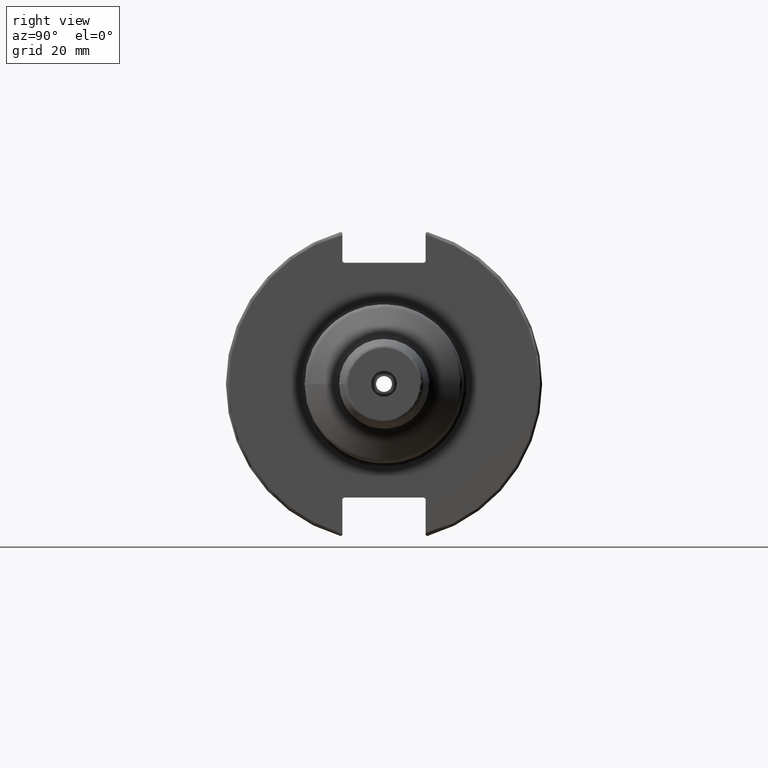
[diagram: clean part render]
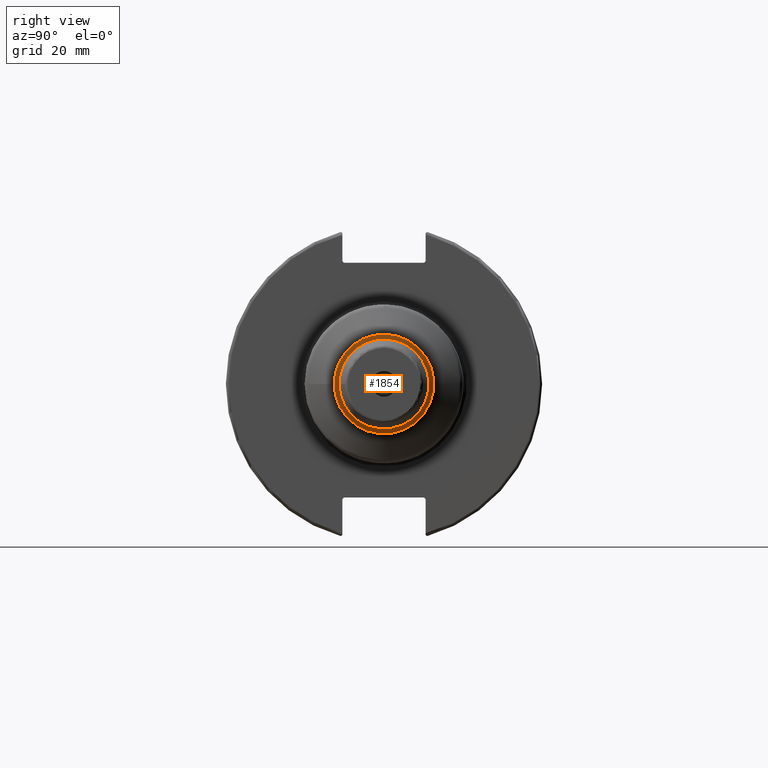
[diagram: same view with one face highlighted and labeled with its STEP entity id]
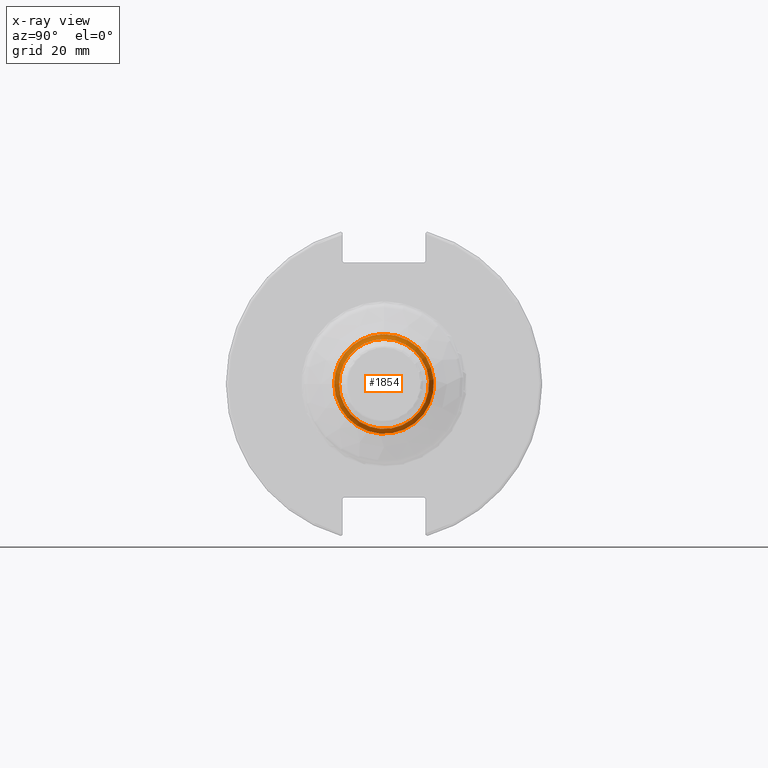
[diagram: x-ray of the same camera — body ghosted, the highlighted face saturated]
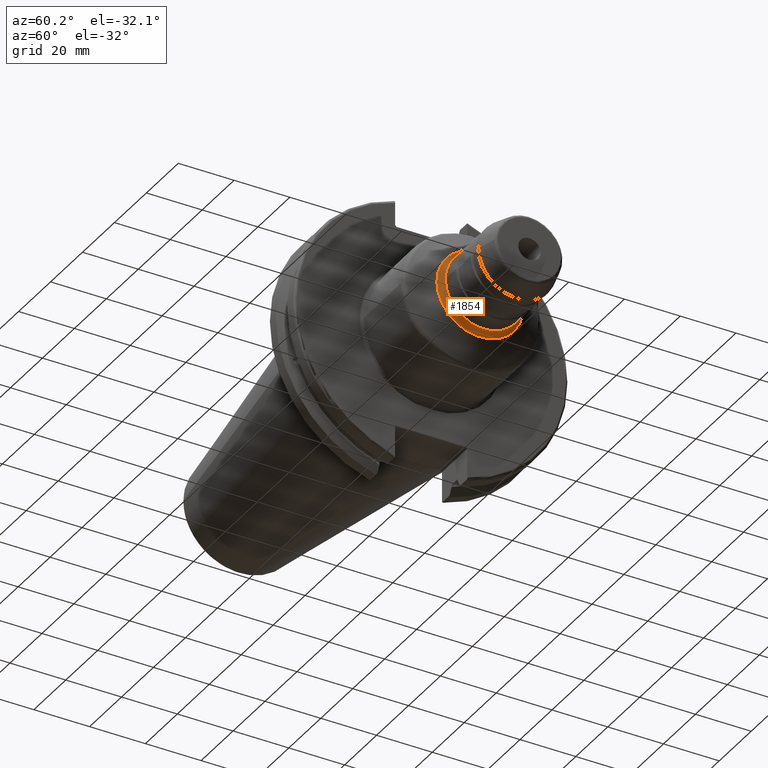
[diagram: same view with one face highlighted and labeled with its STEP entity id]
A machine part, right view. The second image highlights one B-rep face of the part: STEP entity #1854.
The next image is the same camera in x-ray: the body ghosted, the highlighted face saturated — about 0% of this face is hidden behind the body in this view.
A second angle (auxiliary view) of the same face is appended — the face is thin or edge-on in the first view.
In plain terms, the highlighted toroidal blend (fillet) surface has major radius 17 mm and minor (blend) radius 3 mm.
Its self-contained STEP definition (entity closure, byte-faithful):
#78=TOROIDAL_SURFACE('',#2036,17.,3.);
#188=FACE_OUTER_BOUND('',#298,.T.);
#298=EDGE_LOOP('',(#1349,#1350,#1351,#1352,#1353,#1354));
#659=CIRCLE('',#2034,14.);
#660=CIRCLE('',#2035,14.);
#661=CIRCLE('',#2037,15.5);
#662=CIRCLE('',#2038,3.);
#663=CIRCLE('',#2039,15.5);
#784=VERTEX_POINT('',#2988);
#785=VERTEX_POINT('',#2990);
#786=VERTEX_POINT('',#2994);
#787=VERTEX_POINT('',#2995);
#999=EDGE_CURVE('',#785,#784,#659,.T.);
#1000=EDGE_CURVE('',#784,#785,#660,.T.);
#1001=EDGE_CURVE('',#786,#787,#661,.T.);
#1002=EDGE_CURVE('',#787,#785,#662,.T.);
#1003=EDGE_CURVE('',#787,#786,#663,.T.);
#1349=ORIENTED_EDGE('',*,*,#1001,.T.);
#1350=ORIENTED_EDGE('',*,*,#1002,.T.);
#1351=ORIENTED_EDGE('',*,*,#999,.T.);
#1352=ORIENTED_EDGE('',*,*,#1000,.T.);
#1353=ORIENTED_EDGE('',*,*,#1002,.F.);
#1354=ORIENTED_EDGE('',*,*,#1003,.T.);
#1854=ADVANCED_FACE('',(#188),#78,.F.);
#2034=AXIS2_PLACEMENT_3D('',#2991,#2360,#2361);
#2035=AXIS2_PLACEMENT_3D('',#2992,#2362,#2363);
#2036=AXIS2_PLACEMENT_3D('',#2993,#2364,#2365);
#2037=AXIS2_PLACEMENT_3D('',#2996,#2366,#2367);
#2038=AXIS2_PLACEMENT_3D('',#2997,#2368,#2369);
#2039=AXIS2_PLACEMENT_3D('',#2998,#2370,#2371);
#2360=DIRECTION('center_axis',(-1.,0.,0.));
#2361=DIRECTION('ref_axis',(0.,-1.,1.83697019872103E-16));
#2362=DIRECTION('center_axis',(-1.,0.,0.));
#2363=DIRECTION('ref_axis',(0.,-1.,1.83697019872103E-16));
#2364=DIRECTION('center_axis',(1.,0.,0.));
#2365=DIRECTION('ref_axis',(0.,0.,-1.));
#2366=DIRECTION('center_axis',(1.,0.,0.));
#2367=DIRECTION('ref_axis',(0.,-1.,3.06161699786838E-17));
#2368=DIRECTION('center_axis',(0.,-1.,-1.22464679914735E-16));
#2369=DIRECTION('ref_axis',(0.,-1.22464679914735E-16,1.));
#2370=DIRECTION('center_axis',(1.,0.,0.));
#2371=DIRECTION('ref_axis',(0.,-1.,3.06161699786838E-17));
#2988=CARTESIAN_POINT('',(52.2320508075689,-14.,-1.71450551880629E-15));
#2990=CARTESIAN_POINT('',(52.2320508075689,-1.71450551880629E-15,14.));
#2991=CARTESIAN_POINT('Origin',(52.2320508075689,0.,0.));
#2992=CARTESIAN_POINT('Origin',(52.2320508075689,0.,0.));
#2993=CARTESIAN_POINT('Origin',(52.2320508075689,0.,0.));
#2994=CARTESIAN_POINT('',(49.6339745962156,-15.5,-1.8982025386784E-15));
#2995=CARTESIAN_POINT('',(49.6339745962156,-1.8982025386784E-15,15.5));
#2996=CARTESIAN_POINT('Origin',(49.6339745962156,0.,-2.372753173348E-15));
#2997=CARTESIAN_POINT('Origin',(52.2320508075689,-2.0818995585505E-15,17.));
#2998=CARTESIAN_POINT('Origin',(49.6339745962156,0.,-2.372753173348E-15));